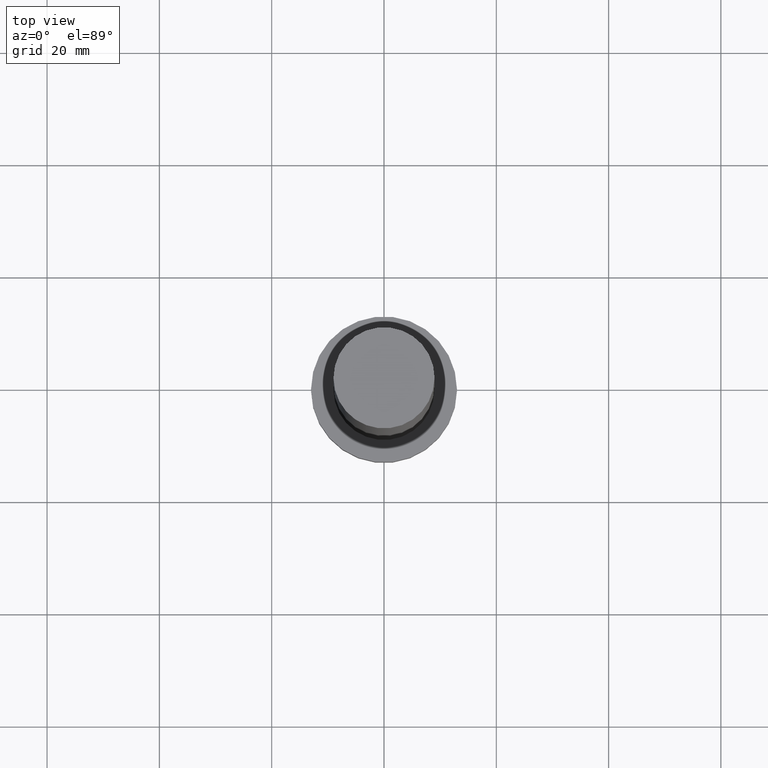
[diagram: clean part render]
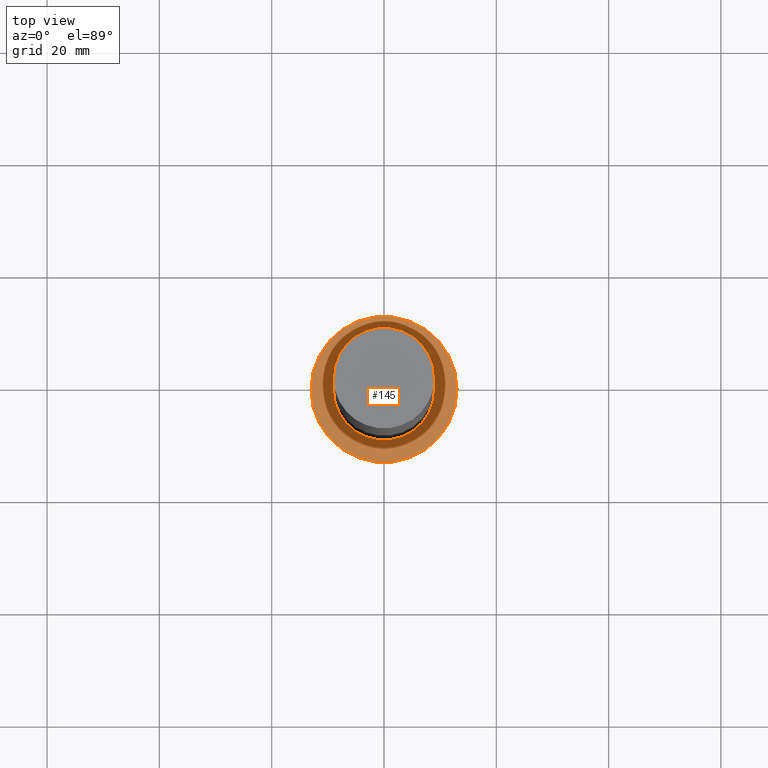
[diagram: same view with one face highlighted and labeled with its STEP entity id]
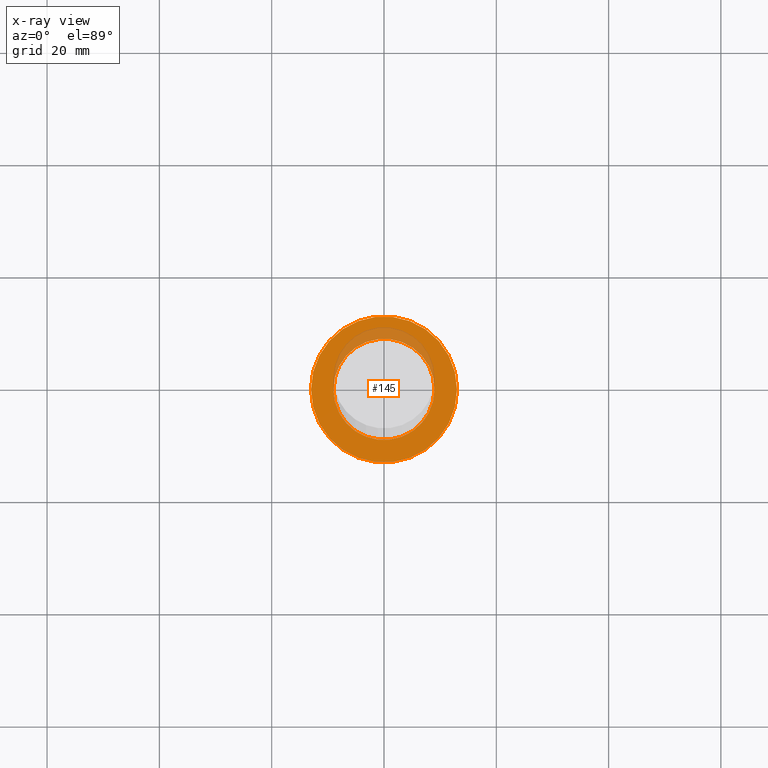
[diagram: x-ray of the same camera — body ghosted, the highlighted face saturated]
A machine part, top view. The second image highlights one B-rep face of the part: STEP entity #145.
The next image is the same camera in x-ray: the body ghosted, the highlighted face saturated — about 14% of this face is hidden behind the body in this view.
In plain terms, the highlighted planar face has unit normal (0, 0, 1).
Its self-contained STEP definition (entity closure, byte-faithful):
#6 = CIRCLE ( 'NONE', #132, 9.000000000000000000 ) ;
#7 = DIRECTION ( 'NONE',  ( 1.000000000000000000, 0.000000000000000000, -0.000000000000000000 ) ) ;
#15 = ORIENTED_EDGE ( 'NONE', *, *, #83, .F. ) ;
#20 = DIRECTION ( 'NONE',  ( 0.000000000000000000, 0.000000000000000000, 1.000000000000000000 ) ) ;
#22 = FACE_OUTER_BOUND ( 'NONE', #223, .T. ) ;
#31 = ORIENTED_EDGE ( 'NONE', *, *, #207, .F. ) ;
#34 = ORIENTED_EDGE ( 'NONE', *, *, #211, .T. ) ;
#35 = EDGE_CURVE ( 'NONE', #179, #87, #217, .T. ) ;
#51 = DIRECTION ( 'NONE',  ( 1.000000000000000000, 0.000000000000000000, 0.000000000000000000 ) ) ;
#58 = CARTESIAN_POINT ( 'NONE',  ( 0.000000000000000000, 0.000000000000000000, 7.000000000000000000 ) ) ;
#64 = ORIENTED_EDGE ( 'NONE', *, *, #35, .T. ) ;
#66 = AXIS2_PLACEMENT_3D ( 'NONE', #58, #175, #82 ) ;
#73 = DIRECTION ( 'NONE',  ( 1.000000000000000000, 0.000000000000000000, 0.000000000000000000 ) ) ;
#82 = DIRECTION ( 'NONE',  ( 1.000000000000000000, 0.000000000000000000, 0.000000000000000000 ) ) ;
#83 = EDGE_CURVE ( 'NONE', #248, #113, #89, .T. ) ;
#87 = VERTEX_POINT ( 'NONE', #122 ) ;
#89 = CIRCLE ( 'NONE', #185, 9.000000000000000000 ) ;
#96 = AXIS2_PLACEMENT_3D ( 'NONE', #174, #232, #51 ) ;
#104 = DIRECTION ( 'NONE',  ( 1.000000000000000000, 0.000000000000000000, 0.000000000000000000 ) ) ;
#110 = EDGE_LOOP ( 'NONE', ( #31, #15 ) ) ;
#113 = VERTEX_POINT ( 'NONE', #119 ) ;
#119 = CARTESIAN_POINT ( 'NONE',  ( -9.000000000000000000, 0.000000000000000000, 7.000000000000000000 ) ) ;
#120 = FACE_BOUND ( 'NONE', #110, .T. ) ;
#122 = CARTESIAN_POINT ( 'NONE',  ( 13.00000000000000178, 1.592040838891559293E-15, 7.000000000000000000 ) ) ;
#132 = AXIS2_PLACEMENT_3D ( 'NONE', #254, #153, #73 ) ;
#142 = CIRCLE ( 'NONE', #96, 13.00000000000000178 ) ;
#145 = ADVANCED_FACE ( 'NONE', ( #120, #22 ), #195, .T. ) ;
#146 = CARTESIAN_POINT ( 'NONE',  ( 0.000000000000000000, 0.000000000000000000, 7.000000000000000000 ) ) ;
#148 = CARTESIAN_POINT ( 'NONE',  ( -13.00000000000000178, 0.000000000000000000, 7.000000000000000000 ) ) ;
#153 = DIRECTION ( 'NONE',  ( 0.000000000000000000, 0.000000000000000000, 1.000000000000000000 ) ) ;
#159 = AXIS2_PLACEMENT_3D ( 'NONE', #146, #20, #7 ) ;
#160 = CARTESIAN_POINT ( 'NONE',  ( 0.000000000000000000, 0.000000000000000000, 7.000000000000000000 ) ) ;
#174 = CARTESIAN_POINT ( 'NONE',  ( 0.000000000000000000, 0.000000000000000000, 7.000000000000000000 ) ) ;
#175 = DIRECTION ( 'NONE',  ( 0.000000000000000000, 0.000000000000000000, 1.000000000000000000 ) ) ;
#179 = VERTEX_POINT ( 'NONE', #148 ) ;
#185 = AXIS2_PLACEMENT_3D ( 'NONE', #160, #238, #104 ) ;
#195 = PLANE ( 'NONE',  #159 ) ;
#207 = EDGE_CURVE ( 'NONE', #113, #248, #6, .T. ) ;
#211 = EDGE_CURVE ( 'NONE', #87, #179, #142, .T. ) ;
#217 = CIRCLE ( 'NONE', #66, 13.00000000000000178 ) ;
#223 = EDGE_LOOP ( 'NONE', ( #64, #34 ) ) ;
#232 = DIRECTION ( 'NONE',  ( 0.000000000000000000, 0.000000000000000000, 1.000000000000000000 ) ) ;
#234 = CARTESIAN_POINT ( 'NONE',  ( 9.000000000000000000, 1.102182119232617714E-15, 7.000000000000000000 ) ) ;
#238 = DIRECTION ( 'NONE',  ( 0.000000000000000000, 0.000000000000000000, 1.000000000000000000 ) ) ;
#248 = VERTEX_POINT ( 'NONE', #234 ) ;
#254 = CARTESIAN_POINT ( 'NONE',  ( 0.000000000000000000, 0.000000000000000000, 7.000000000000000000 ) ) ;